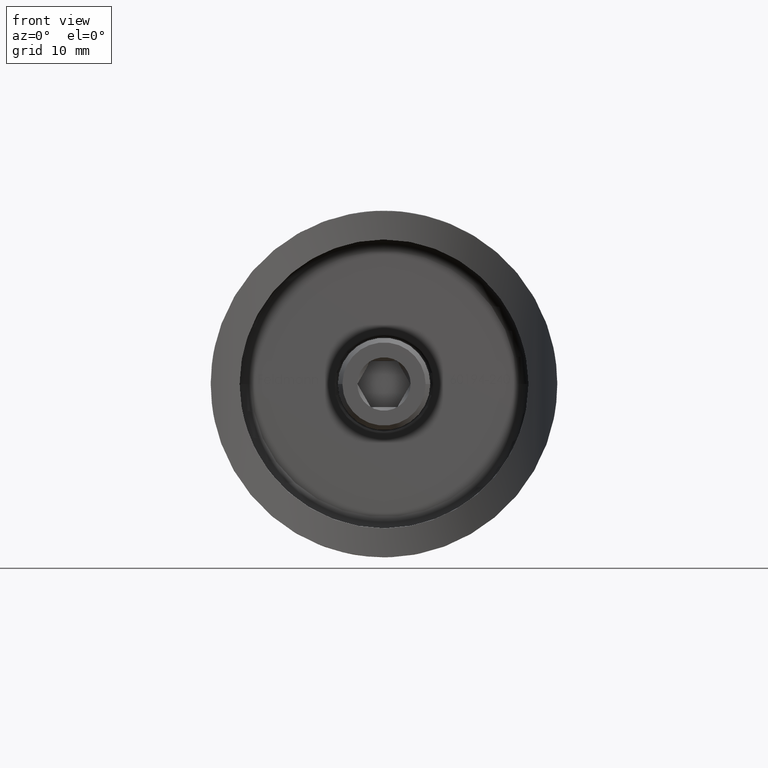
[diagram: clean part render]
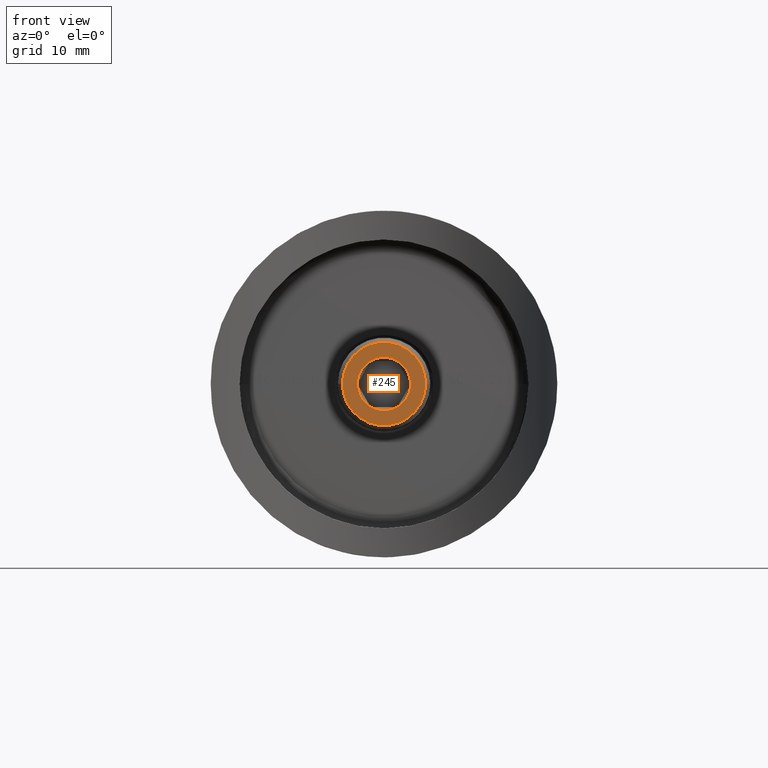
[diagram: same view with one face highlighted and labeled with its STEP entity id]
A machine part, front view. The second image highlights one B-rep face of the part: STEP entity #245.
In plain terms, the highlighted planar face has unit normal (0, 1, 0).
Its self-contained STEP definition (entity closure, byte-faithful):
#76 = FACE_OUTER_BOUND ( 'NONE', #6967, .T. ) ;
#245 = ADVANCED_FACE ( 'NONE', ( #6362, #76 ), #1290, .F. ) ;
#510 = VERTEX_POINT ( 'NONE', #9965 ) ;
#1251 = DIRECTION ( 'NONE',  ( -1.000000000000000000, 0.000000000000000000, 0.000000000000000000 ) ) ;
#1290 = PLANE ( 'NONE',  #9952 ) ;
#1502 = CARTESIAN_POINT ( 'NONE',  ( 0.000000000000000000, 0.000000000000000000, 0.000000000000000000 ) ) ;
#1532 = CIRCLE ( 'NONE', #14976, 3.600000000000000533 ) ;
#2389 = DIRECTION ( 'NONE',  ( 0.000000000000000000, 0.000000000000000000, -1.000000000000000000 ) ) ;
#2427 = AXIS2_PLACEMENT_3D ( 'NONE', #6345, #4223, #8826 ) ;
#2645 = DIRECTION ( 'NONE',  ( -0.000000000000000000, -0.000000000000000000, 1.000000000000000000 ) ) ;
#3910 = CARTESIAN_POINT ( 'NONE',  ( -3.600000000000000533, 0.000000000000000000, 0.000000000000000000 ) ) ;
#3969 = EDGE_LOOP ( 'NONE', ( #10443, #13403 ) ) ;
#4215 = CIRCLE ( 'NONE', #11912, 3.600000000000000533 ) ;
#4223 = DIRECTION ( 'NONE',  ( -0.000000000000000000, -0.000000000000000000, -1.000000000000000000 ) ) ;
#5000 = DIRECTION ( 'NONE',  ( -0.000000000000000000, -0.000000000000000000, 1.000000000000000000 ) ) ;
#6104 = DIRECTION ( 'NONE',  ( -1.000000000000000000, 0.000000000000000000, 0.000000000000000000 ) ) ;
#6178 = DIRECTION ( 'NONE',  ( -1.000000000000000000, 0.000000000000000000, 0.000000000000000000 ) ) ;
#6182 = EDGE_CURVE ( 'NONE', #510, #9355, #13072, .T. ) ;
#6345 = CARTESIAN_POINT ( 'NONE',  ( 0.000000000000000000, 0.000000000000000000, 0.000000000000000000 ) ) ;
#6362 = FACE_BOUND ( 'NONE', #3969, .T. ) ;
#6429 = CARTESIAN_POINT ( 'NONE',  ( 2.310000000000000053, 0.000000000000000000, 0.000000000000000000 ) ) ;
#6488 = EDGE_CURVE ( 'NONE', #12797, #8082, #4215, .T. ) ;
#6967 = EDGE_LOOP ( 'NONE', ( #15175, #9129 ) ) ;
#7257 = DIRECTION ( 'NONE',  ( -1.000000000000000000, 0.000000000000000000, -0.000000000000000000 ) ) ;
#7288 = CARTESIAN_POINT ( 'NONE',  ( 0.000000000000000000, 0.000000000000000000, 0.000000000000000000 ) ) ;
#8082 = VERTEX_POINT ( 'NONE', #13222 ) ;
#8296 = CARTESIAN_POINT ( 'NONE',  ( 0.000000000000000000, 0.000000000000000000, 0.000000000000000000 ) ) ;
#8359 = EDGE_CURVE ( 'NONE', #8082, #12797, #1532, .T. ) ;
#8826 = DIRECTION ( 'NONE',  ( -1.000000000000000000, 0.000000000000000000, 0.000000000000000000 ) ) ;
#9129 = ORIENTED_EDGE ( 'NONE', *, *, #8359, .T. ) ;
#9155 = AXIS2_PLACEMENT_3D ( 'NONE', #8296, #11933, #1251 ) ;
#9355 = VERTEX_POINT ( 'NONE', #6429 ) ;
#9952 = AXIS2_PLACEMENT_3D ( 'NONE', #13149, #2389, #7257 ) ;
#9965 = CARTESIAN_POINT ( 'NONE',  ( -2.310000000000000053, 2.828934106030386301E-16, 0.000000000000000000 ) ) ;
#10443 = ORIENTED_EDGE ( 'NONE', *, *, #12131, .T. ) ;
#11912 = AXIS2_PLACEMENT_3D ( 'NONE', #7288, #5000, #6178 ) ;
#11933 = DIRECTION ( 'NONE',  ( -0.000000000000000000, -0.000000000000000000, -1.000000000000000000 ) ) ;
#12131 = EDGE_CURVE ( 'NONE', #9355, #510, #14986, .T. ) ;
#12797 = VERTEX_POINT ( 'NONE', #3910 ) ;
#13072 = CIRCLE ( 'NONE', #2427, 2.310000000000000053 ) ;
#13149 = CARTESIAN_POINT ( 'NONE',  ( 0.000000000000000000, 0.000000000000000000, 0.000000000000000000 ) ) ;
#13222 = CARTESIAN_POINT ( 'NONE',  ( 3.600000000000000533, 4.653657836759942730E-16, 0.000000000000000000 ) ) ;
#13403 = ORIENTED_EDGE ( 'NONE', *, *, #6182, .T. ) ;
#14976 = AXIS2_PLACEMENT_3D ( 'NONE', #1502, #2645, #6104 ) ;
#14986 = CIRCLE ( 'NONE', #9155, 2.310000000000000053 ) ;
#15175 = ORIENTED_EDGE ( 'NONE', *, *, #6488, .T. ) ;